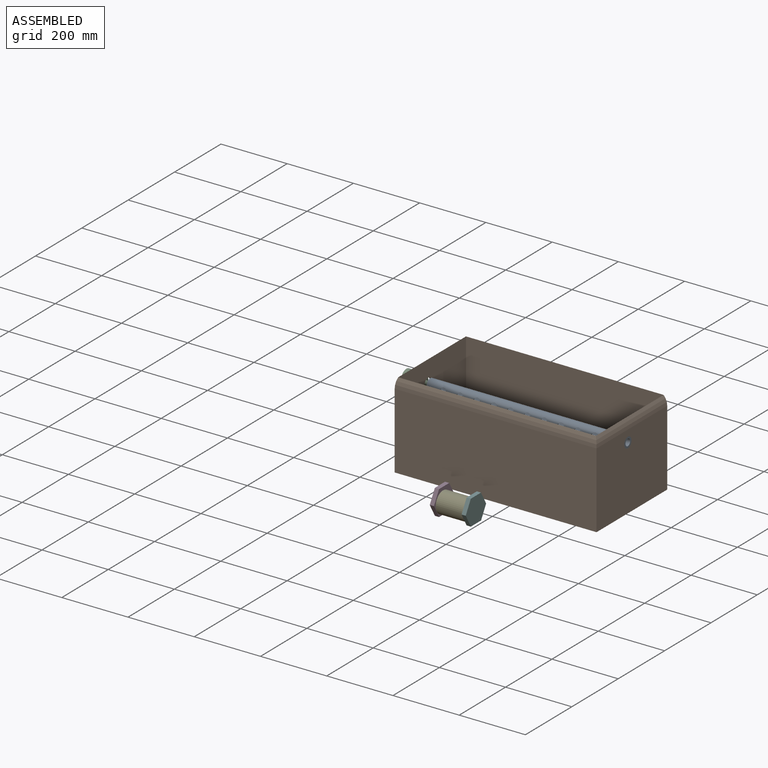
[diagram: assembled view]
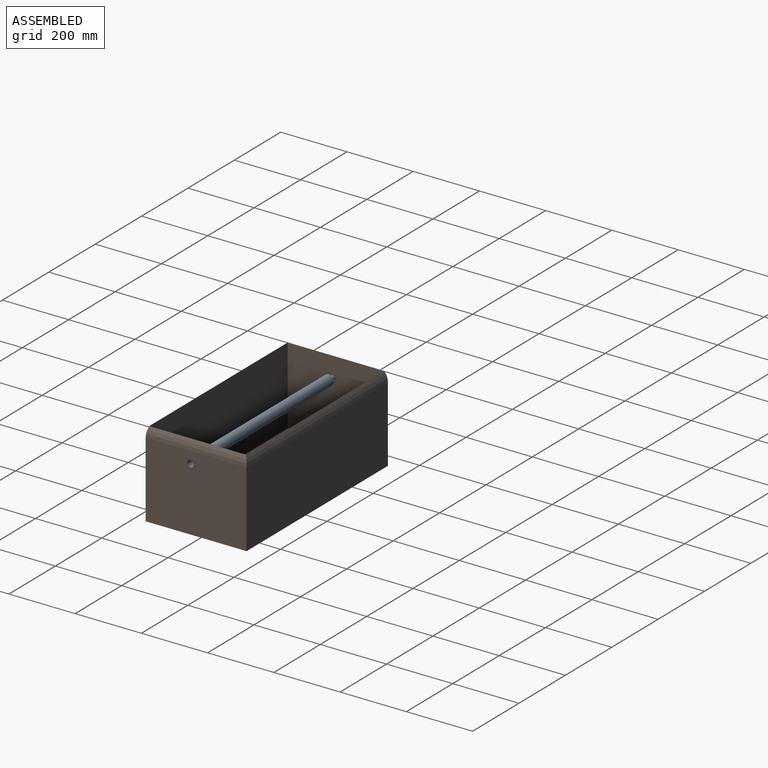
[diagram: assembled view, second angle]
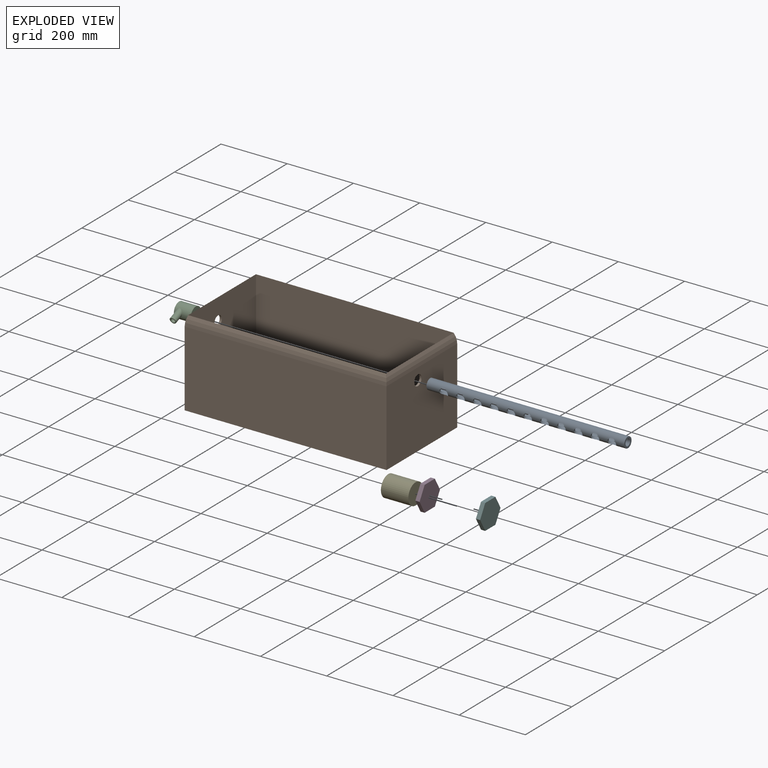
[diagram: exploded view]
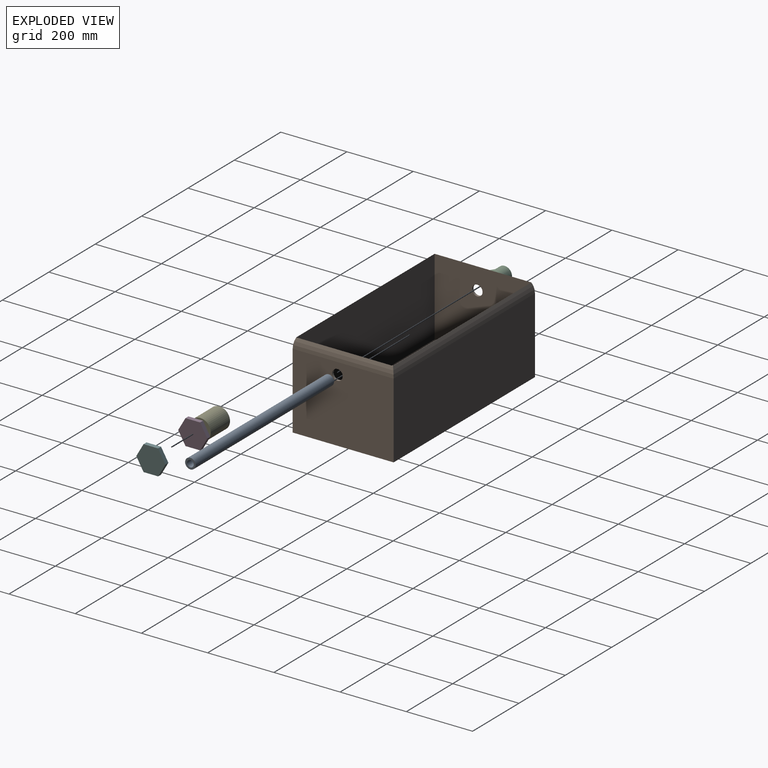
[diagram: exploded view, second angle]
ASSEMBLY  parts=6 mates=4
PART A: 37 faces, bbox 31.8x596.9x31.8 mm
  f0: cylinder r=15.88mm len=596.9mm, axis (0,1,0), area 53350mm2, adj f1,f2,f4,f7,f10,f13,f16,f19
  f1: plane 31.75x31.75mm, normal (0,-1,0), area 467.4mm2, adj f0,f3
  f2: plane 31.75x31.75mm, normal (0,1,0), area 467.4mm2, adj f0,f3
  f3: cylinder r=10.16mm len=596.9mm, axis (0,1,0), area 30858.1mm2, adj f1,f2,f4,f5,f6,f7,f8,f9
  f4: cylinder r=12.7mm len=25.4mm, axis (0,0,1), area 669.3mm2, adj f0,f3,f5,f6
  f5: plane 15.24x2.54mm, normal (0,0,-1), area 26.4mm2, adj f3,f4
  f6: plane 15.24x2.54mm, normal (0,0,-1), area 26.4mm2, adj f3,f4
  f7: cylinder r=12.7mm len=25.4mm, axis (0,0,1), area 669.3mm2, adj f0,f3,f8,f9
  f8: plane 15.24x2.54mm, normal (0,0,-1), area 26.4mm2, adj f3,f7
  f9: plane 15.24x2.54mm, normal (0,0,-1), area 26.4mm2, adj f3,f7
  f10: cylinder r=12.7mm len=25.4mm, axis (0,0,1), area 669.3mm2, adj f0,f3,f11,f12
  f11: plane 15.24x2.54mm, normal (0,0,-1), area 26.4mm2, adj f3,f10
  f12: plane 15.24x2.54mm, normal (0,0,-1), area 26.4mm2, adj f3,f10
  f13: cylinder r=12.7mm len=25.4mm, axis (0,0,1), area 669.3mm2, adj f0,f3,f14,f15
  f14: plane 15.24x2.54mm, normal (0,0,-1), area 26.4mm2, adj f3,f13
  f15: plane 15.24x2.54mm, normal (0,0,-1), area 26.4mm2, adj f3,f13
  f16: cylinder r=12.7mm len=25.4mm, axis (0,0,1), area 669.3mm2, adj f0,f3,f17,f18
  f17: plane 15.24x2.54mm, normal (0,0,-1), area 26.4mm2, adj f3,f16
  f18: plane 15.24x2.54mm, normal (0,0,-1), area 26.4mm2, adj f3,f16
  f19: cylinder r=12.7mm len=25.4mm, axis (0,0,1), area 669.3mm2, adj f0,f3,f20,f21
  f20: plane 15.24x2.54mm, normal (0,0,-1), area 26.4mm2, adj f3,f19
  f21: plane 15.24x2.54mm, normal (0,0,-1), area 26.4mm2, adj f3,f19
  f22: cylinder r=12.7mm len=25.4mm, axis (0,0,1), area 669.3mm2, adj f0,f3,f23,f24
  f23: plane 15.24x2.54mm, normal (0,0,-1), area 26.4mm2, adj f3,f22
  f24: plane 15.24x2.54mm, normal (0,0,-1), area 26.4mm2, adj f3,f22
  f25: cylinder r=12.7mm len=25.4mm, axis (0,0,1), area 669.3mm2, adj f0,f3,f26,f27
  f26: plane 15.24x2.54mm, normal (0,0,-1), area 26.4mm2, adj f3,f25
  f27: plane 15.24x2.54mm, normal (0,0,-1), area 26.4mm2, adj f3,f25
  f28: cylinder r=12.7mm len=25.4mm, axis (0,0,1), area 669.3mm2, adj f0,f3,f29,f30
  f29: plane 15.24x2.54mm, normal (0,0,-1), area 26.4mm2, adj f3,f28
  f30: plane 15.24x2.54mm, normal (0,0,-1), area 26.4mm2, adj f3,f28
  f31: cylinder r=12.7mm len=25.4mm, axis (0,0,1), area 669.3mm2, adj f0,f3,f32,f33
  f32: plane 15.24x2.54mm, normal (0,0,-1), area 26.4mm2, adj f3,f31
  f33: plane 15.24x2.54mm, normal (0,0,-1), area 26.4mm2, adj f3,f31
  f34: cylinder r=12.7mm len=25.4mm, axis (0,0,1), area 669.3mm2, adj f0,f3,f35,f36
  f35: plane 15.24x2.54mm, normal (0,0,-1), area 26.4mm2, adj f3,f34
  f36: plane 15.24x2.54mm, normal (0,0,-1), area 26.4mm2, adj f3,f34
PART B: 16 faces, bbox 609.6x304.8x259.1 mm
  f0: cylinder r=76.2mm len=304.8mm, axis (0,1,0), area 9415.6mm2, adj f1,f2,f7,f10
  f1: cylinder r=76.2mm len=609.6mm, axis (-1,0,0), area 18964.6mm2, adj f0,f3,f8,f11
  f2: plane 304.8x228.6mm, normal (-1,0,0), area 68883mm2, adj f0,f3,f5,f6,f15
  f3: plane 609.6x228.6mm, normal (0,-1,0), area 139354.6mm2, adj f1,f2,f4,f6
  f4: plane 304.8x228.6mm, normal (1,0,0), area 68883mm2, adj f3,f5,f6,f8,f14
  f5: plane 609.6x228.6mm, normal (0,1,0), area 139354.6mm2, adj f2,f4,f6,f7
  f6: plane 609.6x304.8mm, normal (0,0,-1), area 185806.1mm2, adj f2,f3,f4,f5
  f7: cylinder r=76.2mm len=609.6mm, axis (1,0,0), area 18964.6mm2, adj f0,f5,f8,f9
  f8: cylinder r=76.2mm len=304.8mm, axis (0,-1,0), area 9415.6mm2, adj f1,f4,f7,f12
  f9: plane 596.9x233.65mm, normal (0,-1,0), area 139467.8mm2, adj f7,f10,f12,f13
  f10: plane 292.1x233.65mm, normal (1,0,0), area 67455.9mm2, adj f0,f9,f11,f13,f15
  f11: plane 596.9x233.65mm, normal (0,1,0), area 139467.8mm2, adj f1,f10,f12,f13
  f12: plane 292.1x233.65mm, normal (-1,0,0), area 67455.9mm2, adj f8,f9,f11,f13,f14
  f13: plane 596.9x292.1mm, normal (0,0,1), area 174354.5mm2, adj f9,f10,f11,f12
  f14: cylinder r=15.9mm len=31.8mm, axis (-1,0,0), area 634.4mm2, adj f4,f12
  f15: cylinder r=15.9mm len=31.8mm, axis (-1,0,0), area 634.4mm2, adj f2,f10
PART C: 22 faces, bbox 44.5x69x72.1 mm
  f0: cylinder r=4.67mm len=52.94mm, axis (0,0,-1), area 1515.5mm2, adj f2,f3,f13,f15,f19
  f1: cylinder r=4.67mm len=9.35mm, axis (0,0,-1), area 78.3mm2, adj f14,f15,f18,f19,f21
  f2: plane 4.55x1.68mm, normal (-1,0,0), area 0.8mm2, adj f0,f15,f19
  f3: plane 4.55x1.68mm, normal (-1,0,0), area 0.8mm2, adj f0,f15,f19
  f4: plane 9.8x2.31mm, normal (0,-1,0), area 15.7mm2, adj f5,f17
  f5: cylinder r=6.35mm len=46.74mm, axis (0,1,0), area 1766.3mm2, adj f4,f6,f11,f15,f16,f17
  f6: plane 6.97x1.04mm, normal (0,-1,0), area 4.9mm2, adj f5,f15
  f7: cylinder r=22.23mm len=50.8mm, axis (0,0,-1), area 6754mm2, adj f8,f9,f10
  f8: plane 44.45x44.45mm, normal (0,0,1), area 1425.1mm2, adj f7,f12
  f9: plane 44.45x44.45mm, normal (0,0,-1), area 1551.8mm2, adj f7
  f10: cylinder r=9.53mm len=35.99mm, axis (0,1,0), area 1704.1mm2, adj f7,f11
  f11: plane 19.05x19.05mm, normal (0,-1,0), area 158.3mm2, adj f5,f10
  f12: cylinder r=6.35mm len=21.34mm, axis (0,0,-1), area 851.3mm2, adj f8,f13
  f13: plane 12.7x12.7mm, normal (0,0,1), area 58.1mm2, adj f0,f12
  f14: plane 9.35x9.35mm, normal (0,0,1), area 68.6mm2, adj f1
  f15: cylinder r=6.35mm len=13.97mm, axis (1,0,0), area 340.6mm2, adj f0,f1,f2,f3,f5,f6,f16,f17
  f16: cylinder r=6.35mm len=2.24mm, axis (1,0,0), area 0.8mm2, adj f5,f15,f17
  f17: plane 12.7x11.4mm, normal (1,0,0), area 72.7mm2, adj f4,f5,f15,f16
  f18: plane 4.55x1.68mm, normal (1,0,0), area 0.8mm2, adj f1,f15,f19
  f19: cylinder r=6.35mm len=12.7mm, axis (-1,0,0), area 249.7mm2, adj f0,f1,f2,f3,f18,f20,f21
  f20: plane 12.7x12.7mm, normal (-1,0,0), area 126.7mm2, adj f19
  f21: plane 4.55x1.68mm, normal (1,0,0), area 0.8mm2, adj f1,f15,f19
PART D: 8 faces, bbox 88x12.7x76.2 mm
  f0: plane 38.08x22.03mm, normal (0.87,0,0.5), area 558.7mm2, adj f1,f5,f6,f7
  f1: plane 43.99x12.7mm, normal (0,0,1), area 558.7mm2, adj f0,f2,f6,f7
  f2: plane 38.12x21.96mm, normal (-0.87,0,0.5), area 558.7mm2, adj f1,f3,f6,f7
  f3: plane 38.08x22.03mm, normal (-0.87,0,-0.5), area 558.7mm2, adj f2,f4,f6,f7
  f4: plane 43.99x12.7mm, normal (0,0,-1), area 558.7mm2, adj f3,f5,f6,f7
  f5: plane 38.12x21.96mm, normal (0.87,0,-0.5), area 558.7mm2, adj f0,f4,f6,f7
  f6: plane 87.99x76.24mm, normal (0,1,0), area 5028.5mm2, adj f0,f1,f2,f3,f4,f5
  f7: plane 87.99x76.24mm, normal (0,-1,0), area 5028.5mm2, adj f0,f1,f2,f3,f4,f5
PART E: 3 faces, bbox 63.5x82.8x63.5 mm
  f0: cylinder r=31.75mm len=82.8mm, axis (0,-1,0), area 16518.7mm2, adj f1,f2
  f1: plane 63.5x63.5mm, normal (0,1,0), area 3166.9mm2, adj f0
  f2: plane 63.5x63.5mm, normal (0,-1,0), area 3166.9mm2, adj f0
PART F: 8 faces, bbox 88x12.7x76.2 mm
  f0: plane 38.08x22.03mm, normal (0.87,0,0.5), area 558.7mm2, adj f1,f5,f6,f7
  f1: plane 43.99x12.7mm, normal (0,0,1), area 558.7mm2, adj f0,f2,f6,f7
  f2: plane 38.12x21.96mm, normal (-0.87,0,0.5), area 558.7mm2, adj f1,f3,f6,f7
  f3: plane 38.08x22.03mm, normal (-0.87,0,-0.5), area 558.7mm2, adj f2,f4,f6,f7
  f4: plane 43.99x12.7mm, normal (0,0,-1), area 558.7mm2, adj f3,f5,f6,f7
  f5: plane 38.12x21.96mm, normal (0.87,0,-0.5), area 558.7mm2, adj f0,f4,f6,f7
  f6: plane 87.99x76.24mm, normal (0,-1,0), area 5028.5mm2, adj f0,f1,f2,f3,f4,f5
  f7: plane 87.99x76.24mm, normal (0,1,0), area 5028.5mm2, adj f0,f1,f2,f3,f4,f5
PLACE A rot(axis=(-0.49,-0.49,-0.73),108deg) t=(-1519.66,184.04,353.7)mm
PLACE B rot(axis=(0,0,1),180deg) t=(-1519.66,353.69,160.28)mm
PLACE C rot(axis=(0.19,0.96,0.19),92.2deg) t=(-2188.7,184.04,353.7)mm
PLACE D rot(axis=(0,0,1),90deg) t=(-1804.85,-92.17,205.42)mm
PLACE E rot(axis=(0,0,1),90deg) t=(-1798.68,-96.87,202.02)mm
PLACE F rot(axis=(0,0,1),90deg) t=(-1798.43,-91.22,204.29)mm
MATE revolute A.f0 <-> B.f14  axis (1,0,0) through (-1519.66,184.04,353.7)mm
MATE parallel D.f7 <-> E.f0  axis (1,0,0) through (-1881.05,-92.17,205.42)mm
MATE parallel F.f7 <-> E.f0  axis (-1,0,0) through (-1798.43,-91.22,204.29)mm
MATE fastened C.f12 <-> A.f3  axis (1,0,0) through (-2116.56,184.04,353.7)mm
